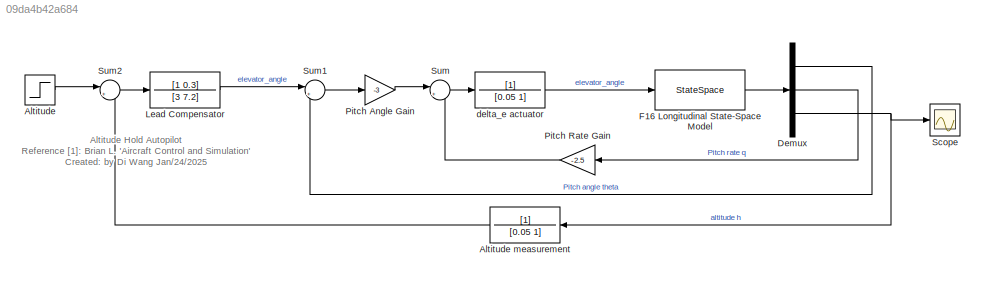
MODEL slx_09da4b42a684
KIND model
CONFIG AbsTol = auto
CONFIG EnableMultiTasking = off
CONFIG FixedStep = auto
CONFIG MaxStep = auto
CONFIG MinStep = auto
CONFIG RelTol = 1e-3
CONFIG SampleTimeConstraint = Unconstrained
CONFIG Solver = VariableStepAuto
CONFIG SolverName = VariableStepAuto
CONFIG StartTime = 0.0
CONFIG StopTime = 30
BLOCK [Step] Altitude
  After = 1000
  SampleTime = 0
BLOCK [TransferFcn] Altitude measurement
  Denominator = [0.05 1]
BLOCK [Demux] Demux
  DisplayOption = bar
  Outputs = 3
  Ports = [1, 3]
BLOCK [StateSpace] F16 Longitudinal State-Space Model
  A = [-0.56761 0 1 2.2633e-6;\n     0 0 1 0;\n     -1.4847 0 -0.47599 -1.4947e-7;\n     -500 500 0 0]
  B = [0;0;-0.019781;0]
  C = [0 57.296 0 0;\n     0 0 57.296 0; 0 0 0 1]
  D = [0;0;0]
  InitialCondition = 0
  Ports = [1, 1]
BLOCK [TransferFcn] Lead Compensator
  Denominator = [3 7.2]
  Numerator = [1 0.3]
BLOCK [Gain] Pitch Angle Gain
  Gain = -3
  OutDataTypeStr = Inherit: Inherit via internal rule
  ParamDataTypeStr = Inherit: Inherit via internal rule
  SaturateOnIntegerOverflow = off
BLOCK [Gain] Pitch Rate Gain
  Gain = -2.5
  OutDataTypeStr = Inherit: Inherit via internal rule
  ParamDataTypeStr = Inherit: Inherit via internal rule
  SaturateOnIntegerOverflow = off
BLOCK [Scope] Scope
  Floating = off
  NumInputPorts = 1
  Ports = [1]
  ScopeSpecificationString = Simulink.scopes.TimeScopeBlockCfg('CurrentConfiguration', extmgr.ConfigurationSet(extmgr.Configuration('Core','General UI',true),extmgr.Configuration('Core','Source UI',true),extmgr.Configuration('Sources','WiredSimulink',true),extmgr.Configuration('Visuals','Time Domain',true,'SerializedDisplays',{struct('MinYLimReal','-124.00094','MaxYLimReal','1116.0085','YLabelReal','','MinYLimMag',' 0.00000',...<+1387ch>
BLOCK [Sum] Sum
  IconShape = round
  InputSameDT = off
  Inputs = |+-
  OutDataTypeStr = Inherit: Inherit via internal rule
  Ports = [2, 1]
  SaturateOnIntegerOverflow = off
BLOCK [Sum] Sum1
  IconShape = round
  InputSameDT = off
  Inputs = |+-
  OutDataTypeStr = Inherit: Inherit via internal rule
  Ports = [2, 1]
  SaturateOnIntegerOverflow = off
BLOCK [Sum] Sum2
  IconShape = round
  InputSameDT = off
  Inputs = |+-
  OutDataTypeStr = Inherit: Inherit via internal rule
  Ports = [2, 1]
  SaturateOnIntegerOverflow = off
BLOCK [TransferFcn] delta_e actuator
  Denominator = [0.05 1]
ANNOTATION (root): Altitude Hold Autopilot Reference [1]: Brian L. 'Aircraft Control and Simulation' Created: by Di Wang Jan/24/2025
LINE Altitude measurement:1 -> Sum2:2
LINE Altitude:1 -> Sum2:1
LINE Demux:1 -> Sum1:2
LINE Demux:2 -> Pitch Rate Gain:1
NET Demux:3 -> Altitude measurement:1, Scope:1
LINE F16 Longitudinal State-Space Model:1 -> Demux:1
LINE Lead Compensator:1 -> Sum1:1
LINE Pitch Angle Gain:1 -> Sum:1
LINE Pitch Rate Gain:1 -> Sum:2
LINE Sum1:1 -> Pitch Angle Gain:1
LINE Sum2:1 -> Lead Compensator:1
LINE Sum:1 -> delta_e actuator:1
LINE delta_e actuator:1 -> F16 Longitudinal State-Space Model:1
note: NET lines group one-source signal fan-out (src -> all destinations, sorted); 1:1 wires keep LINE
